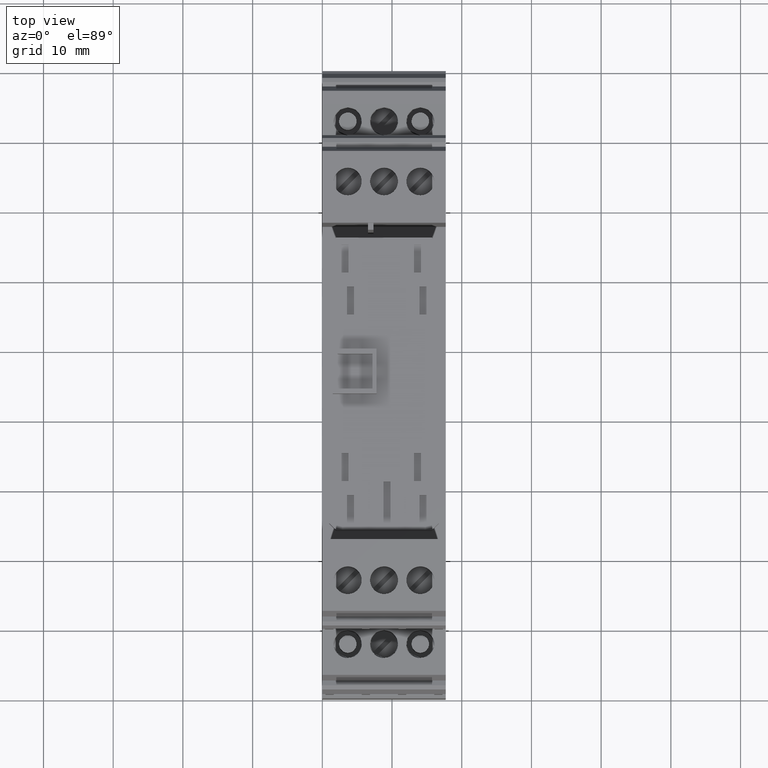
[diagram: clean part render]
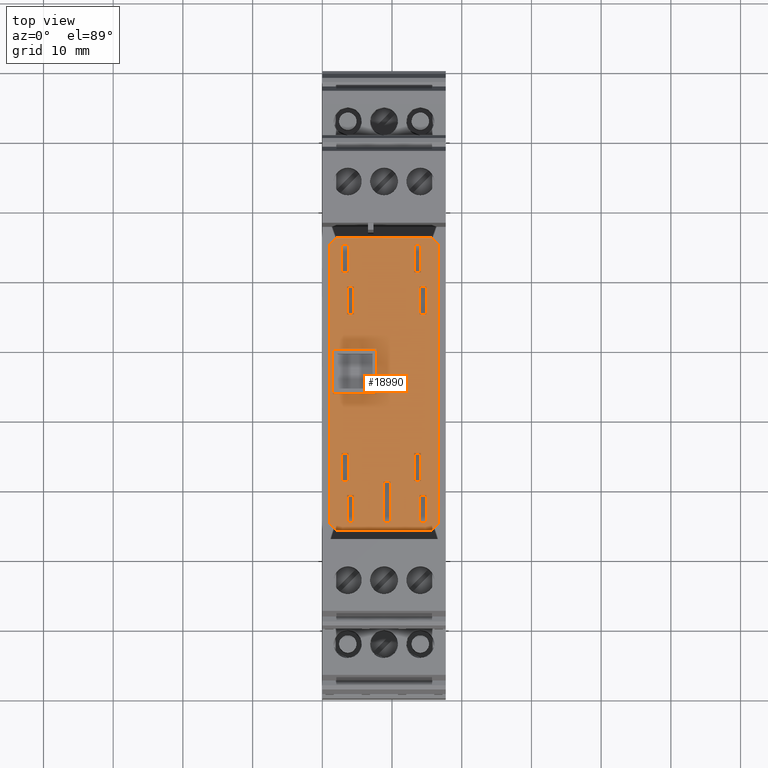
[diagram: same view with one face highlighted and labeled with its STEP entity id]
A machine part, top view. The second image highlights one B-rep face of the part: STEP entity #18990.
In plain terms, the highlighted planar face has unit normal (0, 0, 1).
Its self-contained STEP definition (entity closure, byte-faithful):
#13860=CARTESIAN_POINT('',(49.3413512925594,36.756274052444,
-32.2999999999999));
#13870=VERTEX_POINT('',#13860);
#13900=CARTESIAN_POINT('',(8.89999997864408,36.756274052444,
-32.2999999999999));
#13910=DIRECTION('',(-1.,0.,2.11259981369696E-23));
#13920=VECTOR('',#13910,1.);
#13930=LINE('',#13900,#13920);
#13940=CARTESIAN_POINT('',(89.3413512925595,36.756274052444,
-32.2999999999999));
#13950=VERTEX_POINT('',#13940);
#13960=EDGE_CURVE('',#13950,#13870,#13930,.T.);
#14240=CARTESIAN_POINT('',(48.3413512925595,36.756274052444,
-33.2999999999999));
#14250=VERTEX_POINT('',#14240);
#14280=CARTESIAN_POINT('',(83.8913512926516,36.756274052444,
2.25000000009247));
#14290=DIRECTION('',(-0.707106781186545,0.,-0.70710678118655));
#14300=VECTOR('',#14290,1.);
#14310=LINE('',#14280,#14300);
#14320=EDGE_CURVE('',#13870,#14250,#14310,.T.);
#14550=CARTESIAN_POINT('',(49.3413512925595,36.756274052444,
-47.9999999999999));
#14560=VERTEX_POINT('',#14550);
#14590=CARTESIAN_POINT('',(-0.908648707532535,36.756274052444,
2.25000000009247));
#14600=DIRECTION('',(0.707106781186545,0.,-0.70710678118655));
#14610=VECTOR('',#14600,1.);
#14620=LINE('',#14590,#14610);
#14630=CARTESIAN_POINT('',(48.3413512925595,36.756274052444,
-46.9999999999999));
#14640=VERTEX_POINT('',#14630);
#14650=EDGE_CURVE('',#14640,#14560,#14620,.T.);
#14930=CARTESIAN_POINT('',(90.3413512925594,36.756274052444,
-46.9999999999999));
#14940=VERTEX_POINT('',#14930);
#14970=CARTESIAN_POINT('',(139.591351292652,36.756274052444,
2.25000000009247));
#14980=DIRECTION('',(0.707106781186545,0.,0.70710678118655));
#14990=VECTOR('',#14980,1.);
#15000=LINE('',#14970,#14990);
#15010=CARTESIAN_POINT('',(89.3413512925594,36.756274052444,-48.));
#15020=VERTEX_POINT('',#15010);
#15030=EDGE_CURVE('',#15020,#14940,#15000,.T.);
#15220=CARTESIAN_POINT('',(81.4789291318665,36.756274052444,
-40.1903015001681));
#15230=DIRECTION('',(0.,1.,-0.));
#15240=DIRECTION('',(-1.,0.,0.));
#15250=AXIS2_PLACEMENT_3D('',#15220,#15230,#15240);
#15260=PLANE('',#15250);
#15270=CARTESIAN_POINT('',(53.3913512925595,36.756274052444,
2.25000000009247));
#15280=DIRECTION('',(1.22464679914735E-16,0.,1.));
#15290=VECTOR('',#15280,1.);
#15300=LINE('',#15270,#15290);
#15310=CARTESIAN_POINT('',(53.3913512925595,36.756274052444,
-35.0499999999999));
#15320=VERTEX_POINT('',#15310);
#15330=CARTESIAN_POINT('',(53.3913512925595,36.756274052444,
-34.0499999999999));
#15340=VERTEX_POINT('',#15330);
#15350=EDGE_CURVE('',#15320,#15340,#15300,.T.);
#15360=ORIENTED_EDGE('',*,*,#15350,.T.);
#15370=CARTESIAN_POINT('',(8.89999997864408,36.756274052444,
-35.0499999999999));
#15380=DIRECTION('',(1.,0.,-1.22464679914735E-16));
#15390=VECTOR('',#15380,1.);
#15400=LINE('',#15370,#15390);
#15410=CARTESIAN_POINT('',(49.3913512925595,36.756274052444,
-35.0499999999999));
#15420=VERTEX_POINT('',#15410);
#15430=EDGE_CURVE('',#15420,#15320,#15400,.T.);
#15440=ORIENTED_EDGE('',*,*,#15430,.T.);
#15450=CARTESIAN_POINT('',(49.3913512925595,36.756274052444,
2.25000000009247));
#15460=DIRECTION('',(-1.22464679914735E-16,0.,-1.));
#15470=VECTOR('',#15460,1.);
#15480=LINE('',#15450,#15470);
#15490=CARTESIAN_POINT('',(49.3913512925595,36.756274052444,
-34.0499999999999));
#15500=VERTEX_POINT('',#15490);
#15510=EDGE_CURVE('',#15500,#15420,#15480,.T.);
#15520=ORIENTED_EDGE('',*,*,#15510,.T.);
#15530=CARTESIAN_POINT('',(8.89999997864408,36.756274052444,
-34.0499999999999));
#15540=DIRECTION('',(-1.,0.,1.22464679914735E-16));
#15550=VECTOR('',#15540,1.);
#15560=LINE('',#15530,#15550);
#15570=EDGE_CURVE('',#15340,#15500,#15560,.T.);
#15580=ORIENTED_EDGE('',*,*,#15570,.T.);
#15590=EDGE_LOOP('',(#15580,#15520,#15440,#15360));
#15600=FACE_BOUND('',#15590,.T.);
#15610=CARTESIAN_POINT('',(8.89999997864408,36.756274052444,-41.2));
#15620=DIRECTION('',(1.,0.,-1.22464679914735E-16));
#15630=VECTOR('',#15620,1.);
#15640=LINE('',#15610,#15630);
#15650=CARTESIAN_POINT('',(67.8913512925594,36.756274052444,-41.2));
#15660=VERTEX_POINT('',#15650);
#15670=CARTESIAN_POINT('',(74.2913512925594,36.756274052444,-41.2));
#15680=VERTEX_POINT('',#15670);
#15690=EDGE_CURVE('',#15660,#15680,#15640,.T.);
#15700=ORIENTED_EDGE('',*,*,#15690,.F.);
#15710=CARTESIAN_POINT('',(74.2913512925594,36.756274052444,
2.25000000009247));
#15720=DIRECTION('',(-1.22464679914735E-16,0.,-1.));
#15730=VECTOR('',#15720,1.);
#15740=LINE('',#15710,#15730);
#15750=CARTESIAN_POINT('',(74.2913512925594,36.756274052444,-47.5));
#15760=VERTEX_POINT('',#15750);
#15770=EDGE_CURVE('',#15680,#15760,#15740,.T.);
#15780=ORIENTED_EDGE('',*,*,#15770,.F.);
#15790=CARTESIAN_POINT('',(8.89999997864408,36.756274052444,-47.5));
#15800=DIRECTION('',(-1.,0.,1.22464679914735E-16));
#15810=VECTOR('',#15800,1.);
#15820=LINE('',#15790,#15810);
#15830=CARTESIAN_POINT('',(67.8913512925594,36.756274052444,-47.5));
#15840=VERTEX_POINT('',#15830);
#15850=EDGE_CURVE('',#15760,#15840,#15820,.T.);
#15860=ORIENTED_EDGE('',*,*,#15850,.F.);
#15870=CARTESIAN_POINT('',(67.8913512925594,36.756274052444,
2.25000000009246));
#15880=DIRECTION('',(1.22464679914735E-16,0.,1.));
#15890=VECTOR('',#15880,1.);
#15900=LINE('',#15870,#15890);
#15910=EDGE_CURVE('',#15840,#15660,#15900,.T.);
#15920=ORIENTED_EDGE('',*,*,#15910,.F.);
#15930=EDGE_LOOP('',(#15920,#15860,#15780,#15700));
#15940=FACE_BOUND('',#15930,.T.);
#15950=CARTESIAN_POINT('',(8.89999997864408,36.756274052444,
-35.8499999999999));
#15960=DIRECTION('',(1.,0.,-8.99708997865547E-21));
#15970=VECTOR('',#15960,1.);
#15980=LINE('',#15950,#15970);
#15990=CARTESIAN_POINT('',(85.2913512925594,36.756274052444,
-35.8499999999999));
#16000=VERTEX_POINT('',#15990);
#16010=CARTESIAN_POINT('',(89.2913512925594,36.756274052444,
-35.8499999999999));
#16020=VERTEX_POINT('',#16010);
#16030=EDGE_CURVE('',#16000,#16020,#15980,.T.);
#16040=ORIENTED_EDGE('',*,*,#16030,.T.);
#16050=CARTESIAN_POINT('',(85.2913512925594,36.756274052444,
2.25000000009247));
#16060=DIRECTION('',(-8.99708997865547E-21,0.,-1.));
#16070=VECTOR('',#16060,1.);
#16080=LINE('',#16050,#16070);
#16090=CARTESIAN_POINT('',(85.2913512925594,36.756274052444,
-34.8499999999999));
#16100=VERTEX_POINT('',#16090);
#16110=EDGE_CURVE('',#16100,#16000,#16080,.T.);
#16120=ORIENTED_EDGE('',*,*,#16110,.T.);
#16130=CARTESIAN_POINT('',(8.89999997864408,36.756274052444,
-34.8499999999999));
#16140=DIRECTION('',(-1.,0.,8.99708997865547E-21));
#16150=VECTOR('',#16140,1.);
#16160=LINE('',#16130,#16150);
#16170=CARTESIAN_POINT('',(89.2913512925594,36.756274052444,
-34.8499999999999));
#16180=VERTEX_POINT('',#16170);
#16190=EDGE_CURVE('',#16180,#16100,#16160,.T.);
#16200=ORIENTED_EDGE('',*,*,#16190,.T.);
#16210=CARTESIAN_POINT('',(89.2913512925594,36.756274052444,
2.25000000009247));
#16220=DIRECTION('',(8.99708997865547E-21,0.,1.));
#16230=VECTOR('',#16220,1.);
#16240=LINE('',#16210,#16230);
#16250=EDGE_CURVE('',#16020,#16180,#16240,.T.);
#16260=ORIENTED_EDGE('',*,*,#16250,.T.);
#16270=EDGE_LOOP('',(#16260,#16200,#16120,#16040));
#16280=FACE_BOUND('',#16270,.T.);
#16290=CARTESIAN_POINT('',(8.89999997864408,36.756274052444,
-35.8499999999999));
#16300=DIRECTION('',(1.,0.,-8.99708997865547E-21));
#16310=VECTOR('',#16300,1.);
#16320=LINE('',#16290,#16310);
#16330=CARTESIAN_POINT('',(55.3913512925595,36.756274052444,
-35.8499999999999));
#16340=VERTEX_POINT('',#16330);
#16350=CARTESIAN_POINT('',(59.3913512925595,36.756274052444,
-35.8499999999999));
#16360=VERTEX_POINT('',#16350);
#16370=EDGE_CURVE('',#16340,#16360,#16320,.T.);
#16380=ORIENTED_EDGE('',*,*,#16370,.T.);
#16390=CARTESIAN_POINT('',(55.3913512925595,36.756274052444,
2.25000000009247));
#16400=DIRECTION('',(-8.99708997865547E-21,0.,-1.));
#16410=VECTOR('',#16400,1.);
#16420=LINE('',#16390,#16410);
#16430=CARTESIAN_POINT('',(55.3913512925595,36.756274052444,
-34.8499999999999));
#16440=VERTEX_POINT('',#16430);
#16450=EDGE_CURVE('',#16440,#16340,#16420,.T.);
#16460=ORIENTED_EDGE('',*,*,#16450,.T.);
#16470=CARTESIAN_POINT('',(8.89999997864408,36.756274052444,
-34.8499999999999));
#16480=DIRECTION('',(-1.,0.,8.99708997865547E-21));
#16490=VECTOR('',#16480,1.);
#16500=LINE('',#16470,#16490);
#16510=CARTESIAN_POINT('',(59.3913512925595,36.756274052444,
-34.8499999999999));
#16520=VERTEX_POINT('',#16510);
#16530=EDGE_CURVE('',#16520,#16440,#16500,.T.);
#16540=ORIENTED_EDGE('',*,*,#16530,.T.);
#16550=CARTESIAN_POINT('',(59.3913512925595,36.756274052444,
2.25000000009247));
#16560=DIRECTION('',(8.99708997865547E-21,0.,1.));
#16570=VECTOR('',#16560,1.);
#16580=LINE('',#16550,#16570);
#16590=EDGE_CURVE('',#16360,#16520,#16580,.T.);
#16600=ORIENTED_EDGE('',*,*,#16590,.T.);
#16610=EDGE_LOOP('',(#16600,#16540,#16460,#16380));
#16620=FACE_BOUND('',#16610,.T.);
#16630=CARTESIAN_POINT('',(8.89999997864408,36.756274052444,
-46.2499999999999));
#16640=DIRECTION('',(1.,0.,-8.99708997865547E-21));
#16650=VECTOR('',#16640,1.);
#16660=LINE('',#16630,#16650);
#16670=CARTESIAN_POINT('',(55.3913512925594,36.756274052444,
-46.2499999999999));
#16680=VERTEX_POINT('',#16670);
#16690=CARTESIAN_POINT('',(59.3913512925595,36.756274052444,
-46.2499999999999));
#16700=VERTEX_POINT('',#16690);
#16710=EDGE_CURVE('',#16680,#16700,#16660,.T.);
#16720=ORIENTED_EDGE('',*,*,#16710,.T.);
#16730=CARTESIAN_POINT('',(55.3913512925594,36.756274052444,
2.25000000009247));
#16740=DIRECTION('',(-8.99708997865547E-21,0.,-1.));
#16750=VECTOR('',#16740,1.);
#16760=LINE('',#16730,#16750);
#16770=CARTESIAN_POINT('',(55.3913512925594,36.756274052444,
-45.2499999999999));
#16780=VERTEX_POINT('',#16770);
#16790=EDGE_CURVE('',#16780,#16680,#16760,.T.);
#16800=ORIENTED_EDGE('',*,*,#16790,.T.);
#16810=CARTESIAN_POINT('',(8.89999997864408,36.756274052444,
-45.2499999999999));
#16820=DIRECTION('',(-1.,0.,8.99708997865547E-21));
#16830=VECTOR('',#16820,1.);
#16840=LINE('',#16810,#16830);
#16850=CARTESIAN_POINT('',(59.3913512925595,36.756274052444,
-45.2499999999999));
#16860=VERTEX_POINT('',#16850);
#16870=EDGE_CURVE('',#16860,#16780,#16840,.T.);
#16880=ORIENTED_EDGE('',*,*,#16870,.T.);
#16890=CARTESIAN_POINT('',(59.3913512925595,36.756274052444,
2.25000000009247));
#16900=DIRECTION('',(8.99708997865547E-21,0.,1.));
#16910=VECTOR('',#16900,1.);
#16920=LINE('',#16890,#16910);
#16930=EDGE_CURVE('',#16700,#16860,#16920,.T.);
#16940=ORIENTED_EDGE('',*,*,#16930,.T.);
#16950=EDGE_LOOP('',(#16940,#16880,#16800,#16720));
#16960=FACE_BOUND('',#16950,.T.);
#16970=CARTESIAN_POINT('',(85.2913512925594,36.756274052444,
2.25000000009247));
#16980=DIRECTION('',(-8.99708997865547E-21,0.,-1.));
#16990=VECTOR('',#16980,1.);
#17000=LINE('',#16970,#16990);
#17010=CARTESIAN_POINT('',(85.2913512925594,36.756274052444,
-45.2499999999999));
#17020=VERTEX_POINT('',#17010);
#17030=CARTESIAN_POINT('',(85.2913512925594,36.756274052444,
-46.2499999999999));
#17040=VERTEX_POINT('',#17030);
#17050=EDGE_CURVE('',#17020,#17040,#17000,.T.);
#17060=ORIENTED_EDGE('',*,*,#17050,.T.);
#17070=CARTESIAN_POINT('',(8.89999997864408,36.756274052444,
-45.2499999999999));
#17080=DIRECTION('',(-1.,0.,8.99708997865547E-21));
#17090=VECTOR('',#17080,1.);
#17100=LINE('',#17070,#17090);
#17110=CARTESIAN_POINT('',(89.2913512925594,36.756274052444,
-45.2499999999999));
#17120=VERTEX_POINT('',#17110);
#17130=EDGE_CURVE('',#17120,#17020,#17100,.T.);
#17140=ORIENTED_EDGE('',*,*,#17130,.T.);
#17150=CARTESIAN_POINT('',(89.2913512925594,36.756274052444,
2.25000000009247));
#17160=DIRECTION('',(8.99708997865547E-21,0.,1.));
#17170=VECTOR('',#17160,1.);
#17180=LINE('',#17150,#17170);
#17190=CARTESIAN_POINT('',(89.2913512925594,36.756274052444,
-46.2499999999999));
#17200=VERTEX_POINT('',#17190);
#17210=EDGE_CURVE('',#17200,#17120,#17180,.T.);
#17220=ORIENTED_EDGE('',*,*,#17210,.T.);
#17230=CARTESIAN_POINT('',(8.89999997864408,36.756274052444,
-46.2499999999999));
#17240=DIRECTION('',(1.,0.,-8.99708997865547E-21));
#17250=VECTOR('',#17240,1.);
#17260=LINE('',#17230,#17250);
#17270=EDGE_CURVE('',#17040,#17200,#17260,.T.);
#17280=ORIENTED_EDGE('',*,*,#17270,.T.);
#17290=EDGE_LOOP('',(#17280,#17220,#17140,#17060));
#17300=FACE_BOUND('',#17290,.T.);
#17310=CARTESIAN_POINT('',(8.89999997864408,36.756274052444,-40.25));
#17320=DIRECTION('',(1.,0.,0.));
#17330=VECTOR('',#17320,1.);
#17340=LINE('',#17310,#17330);
#17350=CARTESIAN_POINT('',(49.3913512925594,36.756274052444,-40.25));
#17360=VERTEX_POINT('',#17350);
#17370=CARTESIAN_POINT('',(55.2913512925595,36.756274052444,-40.25));
#17380=VERTEX_POINT('',#17370);
#17390=EDGE_CURVE('',#17360,#17380,#17340,.T.);
#17400=ORIENTED_EDGE('',*,*,#17390,.T.);
#17410=CARTESIAN_POINT('',(49.3913512925594,36.756274052444,
2.25000000009247));
#17420=DIRECTION('',(-1.22464679914735E-16,0.,-1.));
#17430=VECTOR('',#17420,1.);
#17440=LINE('',#17410,#17430);
#17450=CARTESIAN_POINT('',(49.3913512925594,36.756274052444,-39.25));
#17460=VERTEX_POINT('',#17450);
#17470=EDGE_CURVE('',#17460,#17360,#17440,.T.);
#17480=ORIENTED_EDGE('',*,*,#17470,.T.);
#17490=CARTESIAN_POINT('',(8.89999997864408,36.756274052444,-39.25));
#17500=DIRECTION('',(-1.,0.,0.));
#17510=VECTOR('',#17500,1.);
#17520=LINE('',#17490,#17510);
#17530=CARTESIAN_POINT('',(55.2913512925595,36.756274052444,-39.25));
#17540=VERTEX_POINT('',#17530);
#17550=EDGE_CURVE('',#17540,#17460,#17520,.T.);
#17560=ORIENTED_EDGE('',*,*,#17550,.T.);
#17570=CARTESIAN_POINT('',(55.2913512925595,36.756274052444,
2.25000000009247));
#17580=DIRECTION('',(1.22464679914735E-16,0.,1.));
#17590=VECTOR('',#17580,1.);
#17600=LINE('',#17570,#17590);
#17610=EDGE_CURVE('',#17380,#17540,#17600,.T.);
#17620=ORIENTED_EDGE('',*,*,#17610,.T.);
#17630=EDGE_LOOP('',(#17620,#17560,#17480,#17400));
#17640=FACE_BOUND('',#17630,.T.);
#17650=CARTESIAN_POINT('',(8.89999997864408,36.756274052444,
-34.0499999999999));
#17660=DIRECTION('',(-1.,0.,0.));
#17670=VECTOR('',#17660,1.);
#17680=LINE('',#17650,#17670);
#17690=CARTESIAN_POINT('',(83.2913512925595,36.756274052444,
-34.0499999999999));
#17700=VERTEX_POINT('',#17690);
#17710=CARTESIAN_POINT('',(79.2913512925594,36.756274052444,
-34.0499999999999));
#17720=VERTEX_POINT('',#17710);
#17730=EDGE_CURVE('',#17700,#17720,#17680,.T.);
#17740=ORIENTED_EDGE('',*,*,#17730,.T.);
#17750=CARTESIAN_POINT('',(83.2913512925595,36.756274052444,
2.25000000009247));
#17760=DIRECTION('',(0.,0.,1.));
#17770=VECTOR('',#17760,1.);
#17780=LINE('',#17750,#17770);
#17790=CARTESIAN_POINT('',(83.2913512925595,36.756274052444,
-35.0499999999999));
#17800=VERTEX_POINT('',#17790);
#17810=EDGE_CURVE('',#17800,#17700,#17780,.T.);
#17820=ORIENTED_EDGE('',*,*,#17810,.T.);
#17830=CARTESIAN_POINT('',(8.89999997864408,36.756274052444,
-35.0499999999999));
#17840=DIRECTION('',(1.,0.,0.));
#17850=VECTOR('',#17840,1.);
#17860=LINE('',#17830,#17850);
#17870=CARTESIAN_POINT('',(79.2913512925594,36.756274052444,
-35.0499999999999));
#17880=VERTEX_POINT('',#17870);
#17890=EDGE_CURVE('',#17880,#17800,#17860,.T.);
#17900=ORIENTED_EDGE('',*,*,#17890,.T.);
#17910=CARTESIAN_POINT('',(79.2913512925594,36.756274052444,
2.25000000009247));
#17920=DIRECTION('',(0.,0.,-1.));
#17930=VECTOR('',#17920,1.);
#17940=LINE('',#17910,#17930);
#17950=EDGE_CURVE('',#17720,#17880,#17940,.T.);
#17960=ORIENTED_EDGE('',*,*,#17950,.T.);
#17970=EDGE_LOOP('',(#17960,#17900,#17820,#17740));
#17980=FACE_BOUND('',#17970,.T.);
#17990=CARTESIAN_POINT('',(83.2913512925594,36.756274052444,
2.25000000009247));
#18000=DIRECTION('',(0.,0.,1.));
#18010=VECTOR('',#18000,1.);
#18020=LINE('',#17990,#18010);
#18030=CARTESIAN_POINT('',(83.2913512925594,36.756274052444,
-45.4499999999999));
#18040=VERTEX_POINT('',#18030);
#18050=CARTESIAN_POINT('',(83.2913512925594,36.756274052444,
-44.4499999999999));
#18060=VERTEX_POINT('',#18050);
#18070=EDGE_CURVE('',#18040,#18060,#18020,.T.);
#18080=ORIENTED_EDGE('',*,*,#18070,.T.);
#18090=CARTESIAN_POINT('',(8.89999997864408,36.756274052444,
-45.4499999999999));
#18100=DIRECTION('',(1.,0.,0.));
#18110=VECTOR('',#18100,1.);
#18120=LINE('',#18090,#18110);
#18130=CARTESIAN_POINT('',(79.2913512925594,36.756274052444,
-45.4499999999999));
#18140=VERTEX_POINT('',#18130);
#18150=EDGE_CURVE('',#18140,#18040,#18120,.T.);
#18160=ORIENTED_EDGE('',*,*,#18150,.T.);
#18170=CARTESIAN_POINT('',(79.2913512925594,36.756274052444,
2.25000000009247));
#18180=DIRECTION('',(0.,0.,-1.));
#18190=VECTOR('',#18180,1.);
#18200=LINE('',#18170,#18190);
#18210=CARTESIAN_POINT('',(79.2913512925594,36.756274052444,
-44.4499999999999));
#18220=VERTEX_POINT('',#18210);
#18230=EDGE_CURVE('',#18220,#18140,#18200,.T.);
#18240=ORIENTED_EDGE('',*,*,#18230,.T.);
#18250=CARTESIAN_POINT('',(8.89999997864408,36.756274052444,
-44.4499999999999));
#18260=DIRECTION('',(-1.,0.,0.));
#18270=VECTOR('',#18260,1.);
#18280=LINE('',#18250,#18270);
#18290=EDGE_CURVE('',#18060,#18220,#18280,.T.);
#18300=ORIENTED_EDGE('',*,*,#18290,.T.);
#18310=EDGE_LOOP('',(#18300,#18240,#18160,#18080));
#18320=FACE_BOUND('',#18310,.T.);
#18330=CARTESIAN_POINT('',(8.89999997864408,36.756274052444,
-45.4499999999999));
#18340=DIRECTION('',(1.,0.,-1.22464679914735E-16));
#18350=VECTOR('',#18340,1.);
#18360=LINE('',#18330,#18350);
#18370=CARTESIAN_POINT('',(49.3913512925595,36.756274052444,
-45.4499999999999));
#18380=VERTEX_POINT('',#18370);
#18390=CARTESIAN_POINT('',(53.3913512925595,36.756274052444,
-45.4499999999999));
#18400=VERTEX_POINT('',#18390);
#18410=EDGE_CURVE('',#18380,#18400,#18360,.T.);
#18420=ORIENTED_EDGE('',*,*,#18410,.T.);
#18430=CARTESIAN_POINT('',(49.3913512925595,36.756274052444,
2.25000000009247));
#18440=DIRECTION('',(-1.22464679914735E-16,0.,-1.));
#18450=VECTOR('',#18440,1.);
#18460=LINE('',#18430,#18450);
#18470=CARTESIAN_POINT('',(49.3913512925595,36.756274052444,
-44.4499999999999));
#18480=VERTEX_POINT('',#18470);
#18490=EDGE_CURVE('',#18480,#18380,#18460,.T.);
#18500=ORIENTED_EDGE('',*,*,#18490,.T.);
#18510=CARTESIAN_POINT('',(8.89999997864408,36.756274052444,
-44.4499999999999));
#18520=DIRECTION('',(-1.,0.,1.22464679914735E-16));
#18530=VECTOR('',#18520,1.);
#18540=LINE('',#18510,#18530);
#18550=CARTESIAN_POINT('',(53.3913512925595,36.756274052444,
-44.4499999999999));
#18560=VERTEX_POINT('',#18550);
#18570=EDGE_CURVE('',#18560,#18480,#18540,.T.);
#18580=ORIENTED_EDGE('',*,*,#18570,.T.);
#18590=CARTESIAN_POINT('',(53.3913512925595,36.756274052444,
2.25000000009247));
#18600=DIRECTION('',(1.22464679914735E-16,0.,1.));
#18610=VECTOR('',#18600,1.);
#18620=LINE('',#18590,#18610);
#18630=EDGE_CURVE('',#18400,#18560,#18620,.T.);
#18640=ORIENTED_EDGE('',*,*,#18630,.T.);
#18650=EDGE_LOOP('',(#18640,#18580,#18500,#18420));
#18660=FACE_BOUND('',#18650,.T.);
#18670=ORIENTED_EDGE('',*,*,#14650,.F.);
#18680=CARTESIAN_POINT('',(8.89999997864408,36.756274052444,
-47.9999999999999));
#18690=DIRECTION('',(1.,0.,-1.22464679914735E-16));
#18700=VECTOR('',#18690,1.);
#18710=LINE('',#18680,#18700);
#18720=EDGE_CURVE('',#14560,#15020,#18710,.T.);
#18730=ORIENTED_EDGE('',*,*,#18720,.F.);
#18740=ORIENTED_EDGE('',*,*,#15030,.F.);
#18750=CARTESIAN_POINT('',(90.3413512925594,36.756274052444,
2.25000000009247));
#18760=DIRECTION('',(0.,0.,1.));
#18770=VECTOR('',#18760,1.);
#18780=LINE('',#18750,#18770);
#18790=CARTESIAN_POINT('',(90.3413512925594,36.756274052444,
-33.2999999999999));
#18800=VERTEX_POINT('',#18790);
#18810=EDGE_CURVE('',#14940,#18800,#18780,.T.);
#18820=ORIENTED_EDGE('',*,*,#18810,.F.);
#18830=CARTESIAN_POINT('',(54.7913512924673,36.756274052444,
2.25000000009247));
#18840=DIRECTION('',(-0.707106781186545,0.,0.70710678118655));
#18850=VECTOR('',#18840,1.);
#18860=LINE('',#18830,#18850);
#18870=EDGE_CURVE('',#18800,#13950,#18860,.T.);
#18880=ORIENTED_EDGE('',*,*,#18870,.F.);
#18890=ORIENTED_EDGE('',*,*,#13960,.F.);
#18900=ORIENTED_EDGE('',*,*,#14320,.F.);
#18910=CARTESIAN_POINT('',(48.3413512925595,36.756274052444,
2.25000000009247));
#18920=DIRECTION('',(-1.22464679914735E-16,0.,-1.));
#18930=VECTOR('',#18920,1.);
#18940=LINE('',#18910,#18930);
#18950=EDGE_CURVE('',#14250,#14640,#18940,.T.);
#18960=ORIENTED_EDGE('',*,*,#18950,.F.);
#18970=EDGE_LOOP('',(#18960,#18900,#18890,#18880,#18820,#18740,#18730,
#18670));
#18980=FACE_OUTER_BOUND('',#18970,.T.);
#18990=ADVANCED_FACE('',(#15600,#15940,#16280,#16620,#16960,#17300,
#17640,#17980,#18320,#18660,#18980),#15260,.T.);